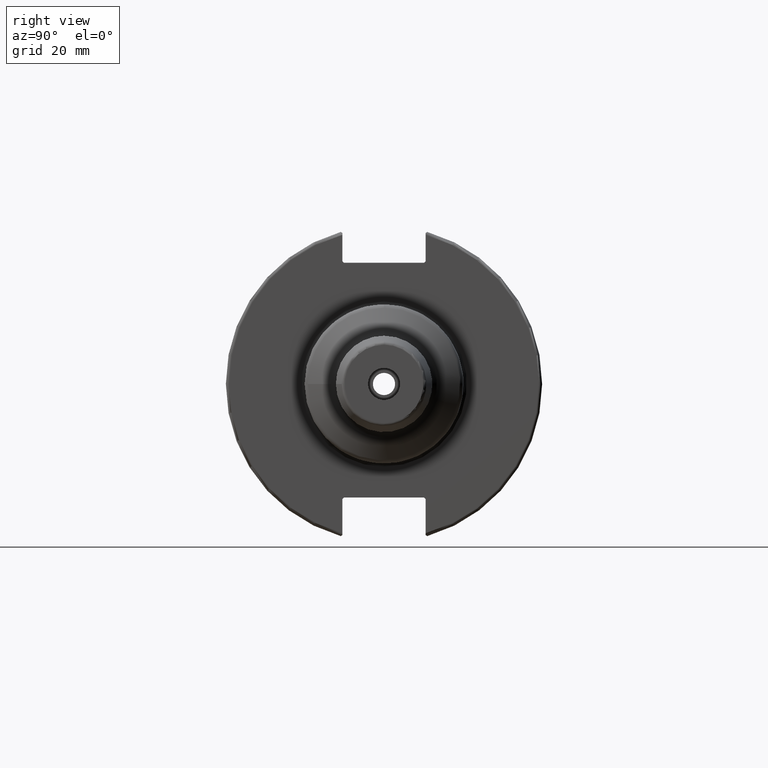
[diagram: clean part render]
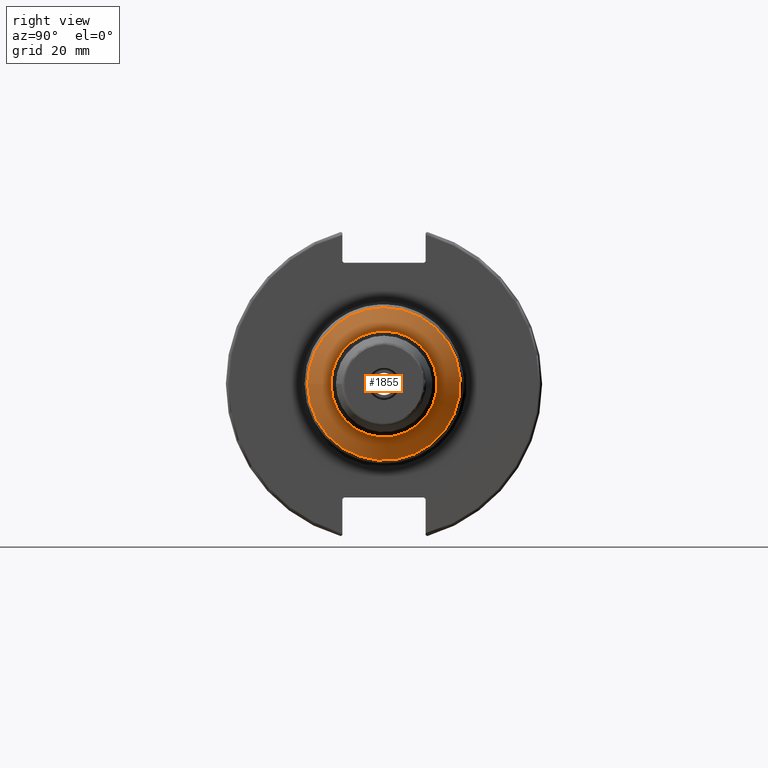
[diagram: same view with one face highlighted and labeled with its STEP entity id]
A machine part, right view. The second image highlights one B-rep face of the part: STEP entity #1855.
In plain terms, the highlighted conical surface has half-angle 60 deg.
Its self-contained STEP definition (entity closure, byte-faithful):
#153=CONICAL_SURFACE('',#2040,19.875,1.0471975511966);
#189=FACE_OUTER_BOUND('',#299,.T.);
#299=EDGE_LOOP('',(#1355,#1356,#1357,#1358,#1359,#1360));
#416=LINE('',#3001,#520);
#520=VECTOR('',#2374,19.875);
#661=CIRCLE('',#2037,16.5);
#663=CIRCLE('',#2039,16.5);
#664=CIRCLE('',#2041,23.75);
#665=CIRCLE('',#2042,23.75);
#786=VERTEX_POINT('',#2994);
#787=VERTEX_POINT('',#2995);
#788=VERTEX_POINT('',#3000);
#789=VERTEX_POINT('',#3002);
#1001=EDGE_CURVE('',#786,#787,#661,.T.);
#1003=EDGE_CURVE('',#787,#786,#663,.T.);
#1004=EDGE_CURVE('',#786,#788,#416,.T.);
#1005=EDGE_CURVE('',#789,#788,#664,.T.);
#1006=EDGE_CURVE('',#788,#789,#665,.T.);
#1355=ORIENTED_EDGE('',*,*,#1001,.F.);
#1356=ORIENTED_EDGE('',*,*,#1004,.T.);
#1357=ORIENTED_EDGE('',*,*,#1005,.F.);
#1358=ORIENTED_EDGE('',*,*,#1006,.F.);
#1359=ORIENTED_EDGE('',*,*,#1004,.F.);
#1360=ORIENTED_EDGE('',*,*,#1003,.F.);
#1855=ADVANCED_FACE('',(#189),#153,.T.);
#2037=AXIS2_PLACEMENT_3D('',#2996,#2366,#2367);
#2039=AXIS2_PLACEMENT_3D('',#2998,#2370,#2371);
#2040=AXIS2_PLACEMENT_3D('',#2999,#2372,#2373);
#2041=AXIS2_PLACEMENT_3D('',#3003,#2375,#2376);
#2042=AXIS2_PLACEMENT_3D('',#3004,#2377,#2378);
#2366=DIRECTION('center_axis',(1.,0.,0.));
#2367=DIRECTION('ref_axis',(0.,-1.,3.06161699786838E-17));
#2370=DIRECTION('center_axis',(1.,0.,0.));
#2371=DIRECTION('ref_axis',(0.,-1.,3.06161699786838E-17));
#2372=DIRECTION('center_axis',(-1.,0.,0.));
#2373=DIRECTION('ref_axis',(0.,1.,0.));
#2374=DIRECTION('',(-0.5,-0.866025403784438,-1.06057523872491E-16));
#2375=DIRECTION('center_axis',(-1.,0.,0.));
#2376=DIRECTION('ref_axis',(0.,-1.,3.06161699786838E-17));
#2377=DIRECTION('center_axis',(-1.,0.,0.));
#2378=DIRECTION('ref_axis',(0.,-1.,3.06161699786838E-17));
#2994=CARTESIAN_POINT('',(47.6339745962156,-16.5,-2.02066721859313E-15));
#2995=CARTESIAN_POINT('',(47.6339745962156,-2.02066721859313E-15,16.5));
#2996=CARTESIAN_POINT('Origin',(47.6339745962156,0.,-2.52583402324142E-15));
#2998=CARTESIAN_POINT('Origin',(47.6339745962156,0.,-2.52583402324142E-15));
#2999=CARTESIAN_POINT('Origin',(45.6854174377006,0.,0.));
#3000=CARTESIAN_POINT('',(43.4481851445908,-23.75,-2.90853614797496E-15));
#3001=CARTESIAN_POINT('',(45.6854174377006,-19.875,-2.43398551330536E-15));
#3002=CARTESIAN_POINT('',(43.4481851445908,-2.90853614797496E-15,23.75));
#3003=CARTESIAN_POINT('Origin',(43.4481851445908,0.,-3.6356701849687E-15));
#3004=CARTESIAN_POINT('Origin',(43.4481851445908,0.,-3.6356701849687E-15));